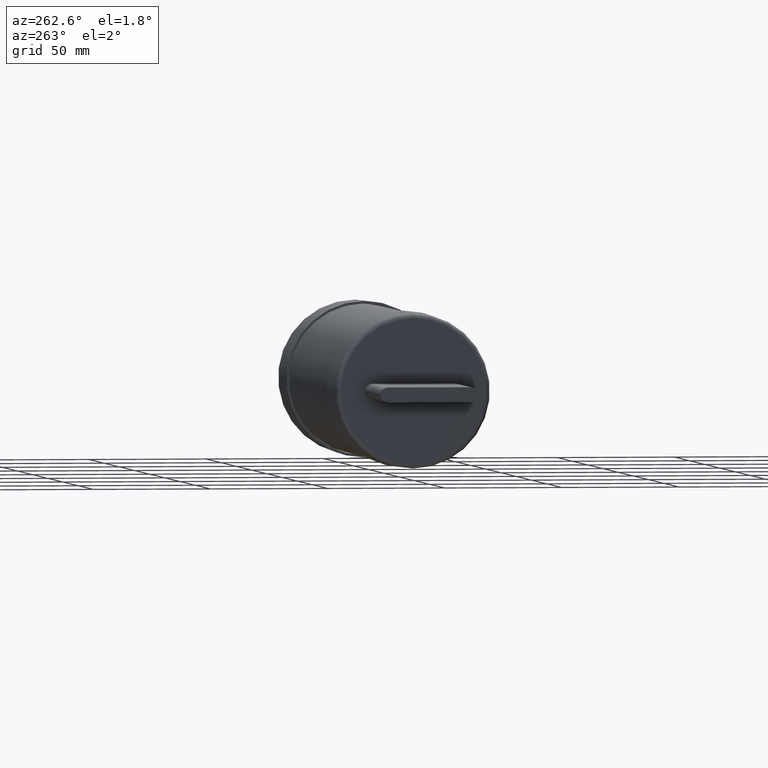
[diagram: clean part render]
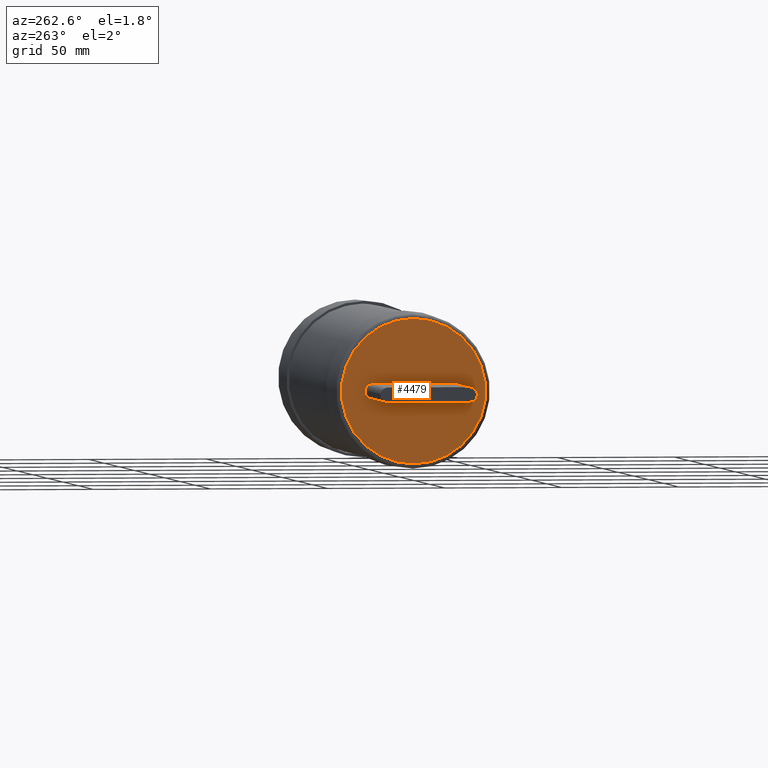
[diagram: same view with one face highlighted and labeled with its STEP entity id]
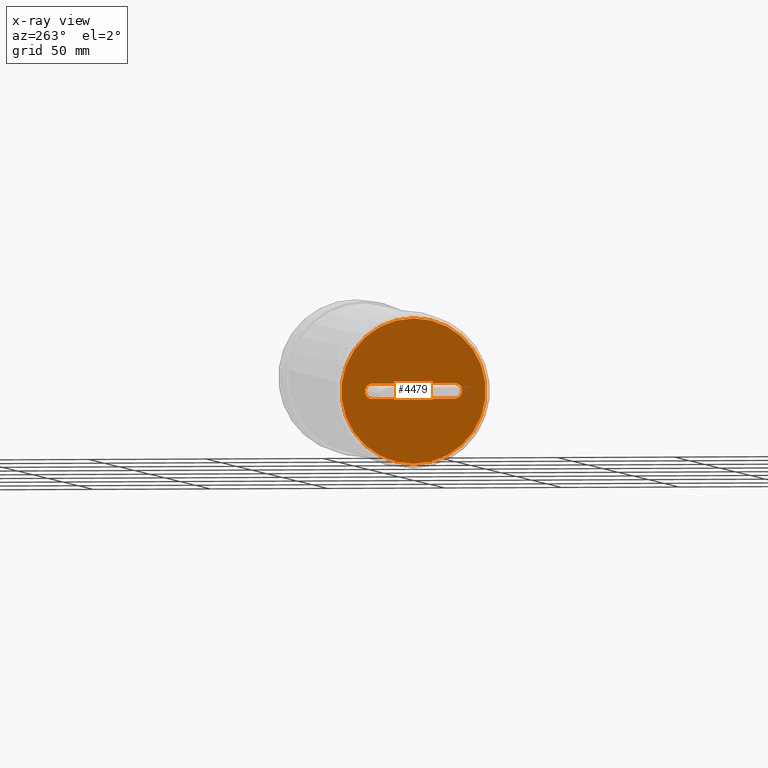
[diagram: x-ray of the same camera — body ghosted, the highlighted face saturated]
A machine part, auxiliary view. The second image highlights one B-rep face of the part: STEP entity #4479.
The next image is the same camera in x-ray: the body ghosted, the highlighted face saturated — about 3% of this face is hidden behind the body in this view.
In plain terms, the highlighted planar face has unit normal (1, 0, 0).
Its self-contained STEP definition (entity closure, byte-faithful):
#117 = DIRECTION ( 'NONE',  ( 0.0000000000000000000, 0.0000000000000000000, 1.000000000000000000 ) ) ;
#193 = EDGE_LOOP ( 'NONE', ( #895, #2949, #470, #1055 ) ) ;
#226 = DIRECTION ( 'NONE',  ( 0.0000000000000000000, -1.000000000000000000, 0.0000000000000000000 ) ) ;
#391 = DIRECTION ( 'NONE',  ( -1.000000000000000000, 0.0000000000000000000, 0.0000000000000000000 ) ) ;
#470 = ORIENTED_EDGE ( 'NONE', *, *, #1918, .F. ) ;
#472 = DIRECTION ( 'NONE',  ( -1.000000000000000000, 0.0000000000000000000, 0.0000000000000000000 ) ) ;
#616 = CARTESIAN_POINT ( 'NONE',  ( -3.821000000000000200, 0.6885000000000000000, -0.1290000000000000900 ) ) ;
#647 = FACE_BOUND ( 'NONE', #193, .T. ) ;
#773 = CARTESIAN_POINT ( 'NONE',  ( -3.821000000000000200, -0.6884999999999997800, 0.1289999999999999500 ) ) ;
#801 = ORIENTED_EDGE ( 'NONE', *, *, #3515, .T. ) ;
#831 = CARTESIAN_POINT ( 'NONE',  ( -3.821000000000000200, 0.6885000000000000000, -7.339607970319252400E-017 ) ) ;
#833 = AXIS2_PLACEMENT_3D ( 'NONE', #4475, #1996, #4110 ) ;
#884 = CARTESIAN_POINT ( 'NONE',  ( -3.821000000000000200, 1.103633461062003700E-016, 1.212499999999999700 ) ) ;
#895 = ORIENTED_EDGE ( 'NONE', *, *, #2480, .F. ) ;
#964 = LINE ( 'NONE', #2638, #2298 ) ;
#1055 = ORIENTED_EDGE ( 'NONE', *, *, #3335, .F. ) ;
#1075 = CIRCLE ( 'NONE', #3996, 0.1290000000000000000 ) ;
#1179 = FACE_OUTER_BOUND ( 'NONE', #2588, .T. ) ;
#1706 = LINE ( 'NONE', #4449, #2074 ) ;
#1758 = CARTESIAN_POINT ( 'NONE',  ( -3.821000000000000200, -0.6884999999999997800, -7.381450150076234100E-017 ) ) ;
#1877 = CARTESIAN_POINT ( 'NONE',  ( -3.821000000000000200, -0.6884999999999997800, -0.1290000000000000900 ) ) ;
#1918 = EDGE_CURVE ( 'NONE', #2404, #4205, #1706, .T. ) ;
#1990 = CIRCLE ( 'NONE', #3873, 1.212499999999999900 ) ;
#1996 = DIRECTION ( 'NONE',  ( 1.000000000000000000, 0.0000000000000000000, 0.0000000000000000000 ) ) ;
#2074 = VECTOR ( 'NONE', #226, 39.37007874015748100 ) ;
#2184 = DIRECTION ( 'NONE',  ( 0.0000000000000000000, 0.0000000000000000000, -1.000000000000000000 ) ) ;
#2223 = CARTESIAN_POINT ( 'NONE',  ( -3.821000000000000200, 0.6885000000000000000, 0.1289999999999999500 ) ) ;
#2278 = DIRECTION ( 'NONE',  ( -0.0000000000000000000, 1.000000000000000000, -0.0000000000000000000 ) ) ;
#2298 = VECTOR ( 'NONE', #2278, 39.37007874015748100 ) ;
#2382 = VERTEX_POINT ( 'NONE', #884 ) ;
#2404 = VERTEX_POINT ( 'NONE', #616 ) ;
#2480 = EDGE_CURVE ( 'NONE', #2928, #3247, #964, .T. ) ;
#2588 = EDGE_LOOP ( 'NONE', ( #801 ) ) ;
#2638 = CARTESIAN_POINT ( 'NONE',  ( -3.821000000000000200, 0.6885000000000000000, 0.1289999999999999500 ) ) ;
#2928 = VERTEX_POINT ( 'NONE', #773 ) ;
#2949 = ORIENTED_EDGE ( 'NONE', *, *, #4553, .F. ) ;
#3059 = DIRECTION ( 'NONE',  ( 0.0000000000000000000, 0.0000000000000000000, 1.000000000000000000 ) ) ;
#3247 = VERTEX_POINT ( 'NONE', #2223 ) ;
#3335 = EDGE_CURVE ( 'NONE', #3247, #2404, #1075, .T. ) ;
#3431 = AXIS2_PLACEMENT_3D ( 'NONE', #1758, #391, #2184 ) ;
#3515 = EDGE_CURVE ( 'NONE', #2382, #2382, #1990, .T. ) ;
#3837 = CIRCLE ( 'NONE', #3431, 0.1290000000000000000 ) ;
#3873 = AXIS2_PLACEMENT_3D ( 'NONE', #4100, #3896, #3059 ) ;
#3896 = DIRECTION ( 'NONE',  ( -1.000000000000000000, -0.0000000000000000000, -0.0000000000000000000 ) ) ;
#3996 = AXIS2_PLACEMENT_3D ( 'NONE', #831, #472, #117 ) ;
#4100 = CARTESIAN_POINT ( 'NONE',  ( -3.821000000000000200, 1.103633461062003700E-016, -7.381450150076234100E-017 ) ) ;
#4110 = DIRECTION ( 'NONE',  ( 0.0000000000000000000, 0.0000000000000000000, -1.000000000000000000 ) ) ;
#4205 = VERTEX_POINT ( 'NONE', #1877 ) ;
#4449 = CARTESIAN_POINT ( 'NONE',  ( -3.821000000000000200, 0.6885000000000000000, -0.1290000000000000900 ) ) ;
#4475 = CARTESIAN_POINT ( 'NONE',  ( -3.821000000000000200, 1.103633461062003700E-016, -7.381450150076234100E-017 ) ) ;
#4479 = ADVANCED_FACE ( 'NONE', ( #647, #1179 ), #4539, .F. ) ;
#4539 = PLANE ( 'NONE',  #833 ) ;
#4553 = EDGE_CURVE ( 'NONE', #4205, #2928, #3837, .T. ) ;